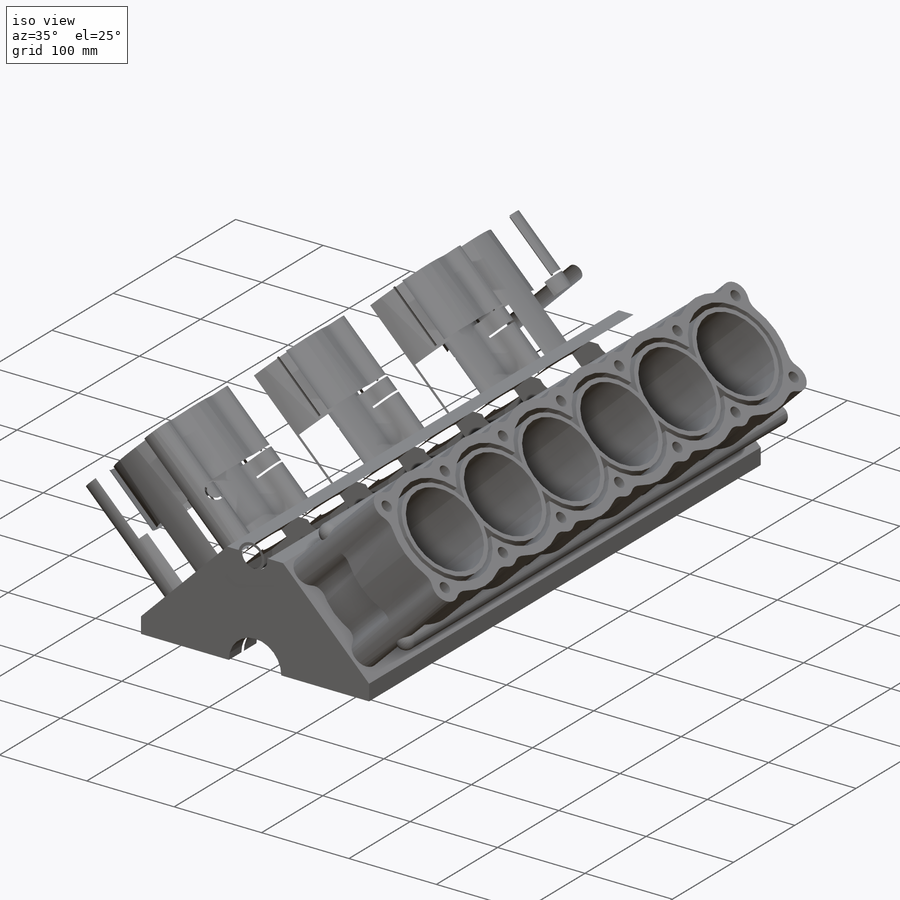
[diagram: iso view]
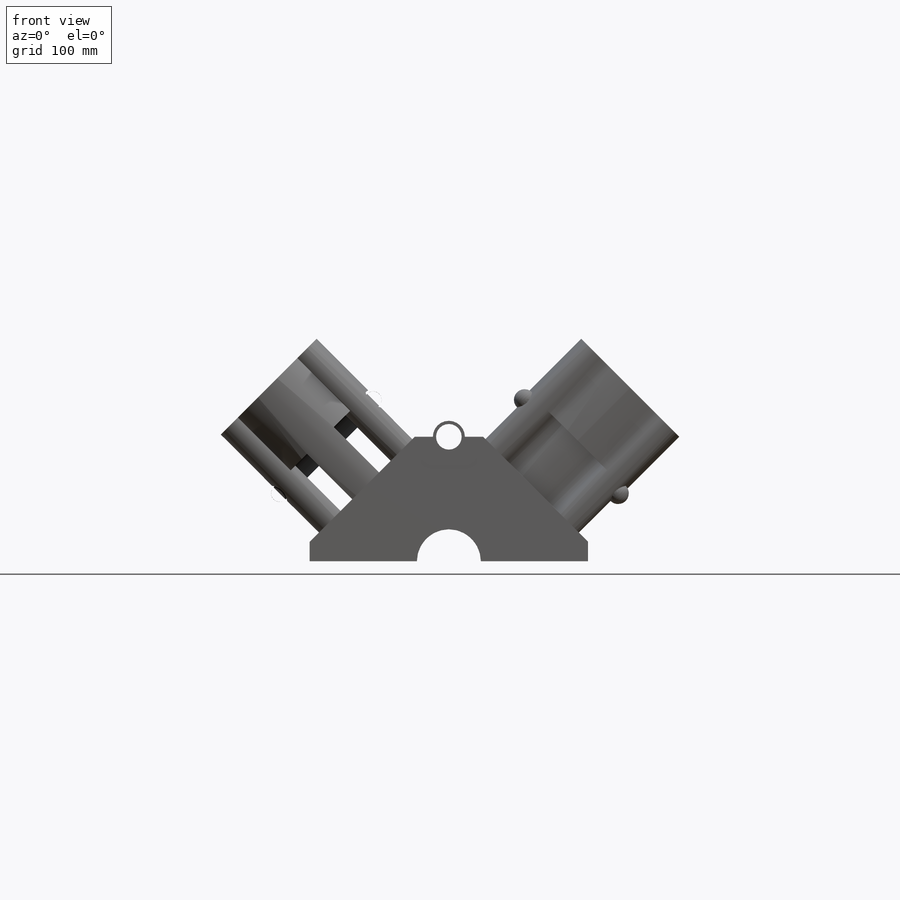
[diagram: front view]
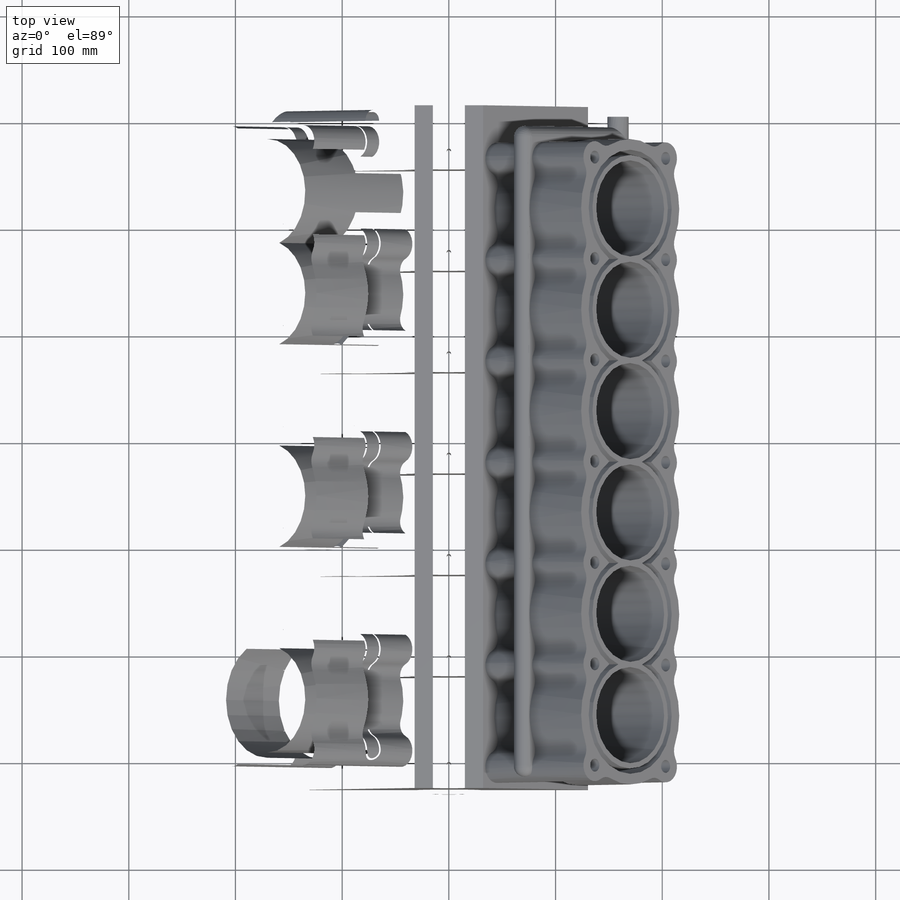
[diagram: top view]
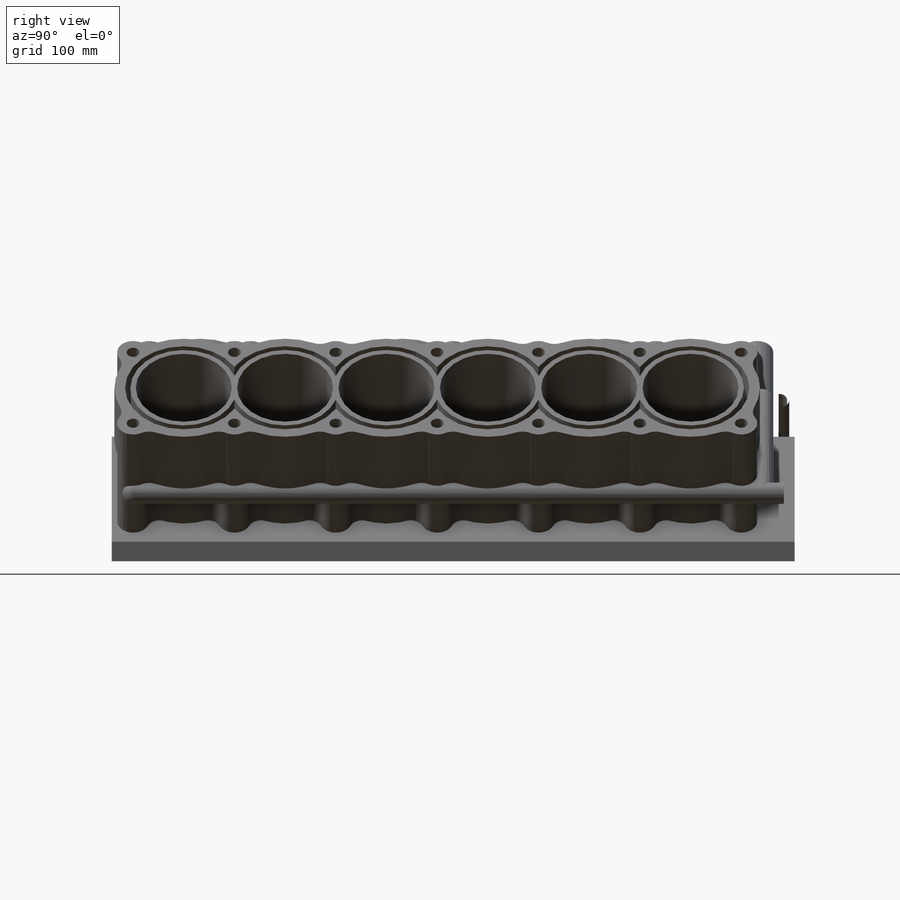
[diagram: right view]
SOLIDWORKS PART (.sldprt)
format: sldprt  version: not decoded by parser v0  size: 5,855,744 bytes
history: native  units: mm
features: sketch x32, extrude x13, cut_extrude x13, move_body x6, plane x4, mirror x3, material x1, pattern_linear x1, boolean_combine x1, revolve x1, sweep x1, cut_revolve x1 (+16 scaffold rows collapsed; 2 parser-record rows omitted)
feature tree (95):
  scaffold x16  (default folders/planes/origin — collapsed)
  material  "Material <not specified>"
  sketch  "Sketch1"
  plane  "Plane2"
  sketch  "Sketch2"  dims[c1.D1=15.0mm c1.D2=15.0mm c1.D3=65.0mm c1.D4=55.0mm c2.D1=47.5mm c2.D4=47.5mm]
  extrude  "Boss-Extrude1"  Depth=130mm
  sketch  "Sketch5"  dims[D1=~94.045436mm]
  cut_extrude  "Cut-Extrude4"  Depth=60mm
  sketch  "Sketch6"  dims[D1=~13.628399mm]
  extrude  "Boss-Extrude2"  Depth=60mm
  pattern_linear  "LPattern1"  Count1=6 Count2=1 Spacing1=95mm Spacing2=50mm
  boolean_combine  "Combine1"
  sketch  "Sketch8"  dims[c1.D1=90.0mm c2.D1=6.0]
  cut_extrude  "Cut-Extrude5"  Depth=70mm
  sketch  "Sketch9"  dims[c1.D1=40.0mm c2.D1=125.0deg c3.D1=150.0mm c4.D1=145.0deg c5.D1=170.0mm c6.D1=145.0deg c7.D1=8.0mm c8.D1=325.0deg c9.D1=50.0mm c10.D1=35.0deg c11.D1=15.0mm c12.D1=55.0deg c13.D1=15.0mm c14.D1=55.0deg c15.D1=15.0mm c16.D1=55.0deg c17.D1=15.0mm c18.D1=55.0deg]
  extrude  "Boss-Extrude3"  Depth=190mm
  sketch  "Sketch10"
  plane  "Plane3"
  mirror  "Mirror1"
  sketch  "Sketch11"  dims[c1.D1=95.0mm c2.D1=6.0]
  cut_extrude  "Cut-Extrude8"  [1 undecoded]
  sketch  "Sketch12"
  extrude  "Boss-Extrude4"  [1 undecoded]
  sketch  "Sketch13"
  revolve  "Revolve1"  Angle=120deg
  sketch  "Sketch14"  dims[c1.D1=60.0mm c2.D1=125.0deg]
  plane  "Plane4"
  sketch  "Sketch15"  dims[D1=~34.405321mm]
  plane  "Plane5"
  sweep  "Sweep1"
  mirror  "Mirror3"
  sketch  "Sketch16"  dims[c1.D1=~8.029397mm c2.D1=7.0]
  cut_extrude  "Cut-Extrude9"  [1 undecoded]
  sketch  "Sketch17"  dims[D1=~16.513534mm]
  extrude  "Boss-Extrude5"  Depth=20mm
  sketch  "Sketch19"  dims[D1=~5.309162mm]
  cut_extrude  "Cut-Extrude11"  Depth=20mm
  move_body  "Body-Move/Copy12"
  sketch  "Sketch32"  dims[D1=640.0mm]
  extrude  "Boss-Extrude11"  Depth=10mm
  move_body  "Body-Move/Copy14"
  move_body  "Body-Move/Copy15"
  parser-record x2  (decoder bookkeeping rows leaked as tree rows — omitted from the tree; the rows remain in map.json)
  sketch  "Sketch42"  dims[D1=10.0mm]
  extrude  "Boss-Extrude12"  [1 undecoded]
  move_body  "Body-Move/Copy16"
  move_body  "Body-Move/Copy17"
  mirror  "Mirror8"
  move_body  "Body-Move/Copy18"
  sketch  "Sketch50"  dims[c1.D1=20.0mm c1.D2=45.0mm c2.D1=5.0]
  extrude  "Boss-Extrude21"  [1 undecoded]
  sketch  "Sketch51"  dims[D1=0.0mm]
  extrude  "Boss-Extrude22"  Depth=10mm
  sketch  "Sketch52"
  cut_extrude  "Cut-Extrude14"  [1 undecoded]
  sketch  "Sketch54"  dims[c1.D1=15.0mm c2.D1=6.0]
  extrude  "Boss-Extrude23"  [1 undecoded]
  sketch  "Sketch55"  dims[c1.D1=15.0mm c2.D1=6.0]
  extrude  "Boss-Extrude24"  [1 undecoded]
  sketch  "Sketch57"
  cut_extrude  "Cut-Extrude15"  [1 undecoded]
  sketch  "Sketch58"
  cut_extrude  "Cut-Extrude16"  [1 undecoded]
  sketch  "Sketch59"  dims[D1=~39.436939mm]
  cut_extrude  "Cut-Extrude17"  [1 undecoded]
  sketch  "Sketch60"  dims[c1.D1=~13.848124mm c2.D1=6.0]
  cut_extrude  "Cut-Extrude18"  Depth=160mm
  sketch  "Sketch61"  dims[c1.D1=~29.39428mm c2.D1=6.0]
  cut_extrude  "Cut-Extrude19"  Depth=160mm
  sketch  "Sketch62"  dims[D1=~12.476739mm]
  extrude  "Boss-Extrude25"  Depth=5.95mm
  sketch  "Sketch63"  dims[D1=~9.883891mm]
  cut_extrude  "Cut-Extrude20"  Depth=393mm
  sketch  "Sketch65"  dims[c1.D1=~8.008732mm c2.D1=6.0 c2.D2=2.0]
  cut_extrude  "Cut-Extrude21"  [1 undecoded]
  sketch  "Sketch67"  dims[c1.D1=~1.839227mm c1.D2=100.0mm c2.D1=6.0]
  cut_revolve  "Cut-Revolve1"  Angle=360deg
  sketch  "Sketch68"  dims[D1=~37.236124mm]
  extrude  "Boss-Extrude26"  Depth=5mm
decode coverage: 42 of 72 modeling features carry decoded parameters
note: ~ marks probable driven/reference dimensions
note: 12 parameter values undecoded
summary: no parameter record found for 12 features
note: suppression state not decoded; provenance and decode notes live in map.json
